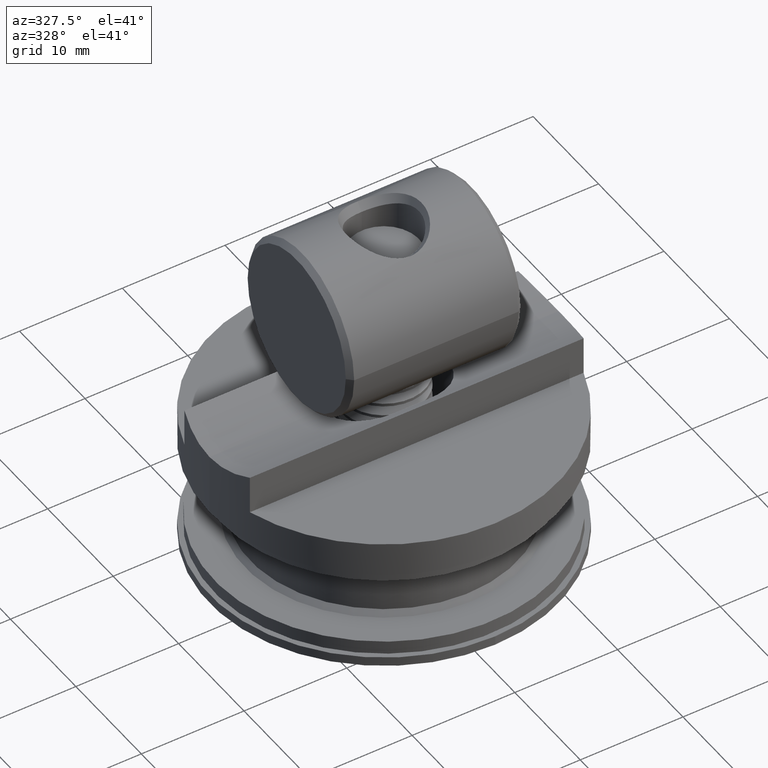
[diagram: clean part render]
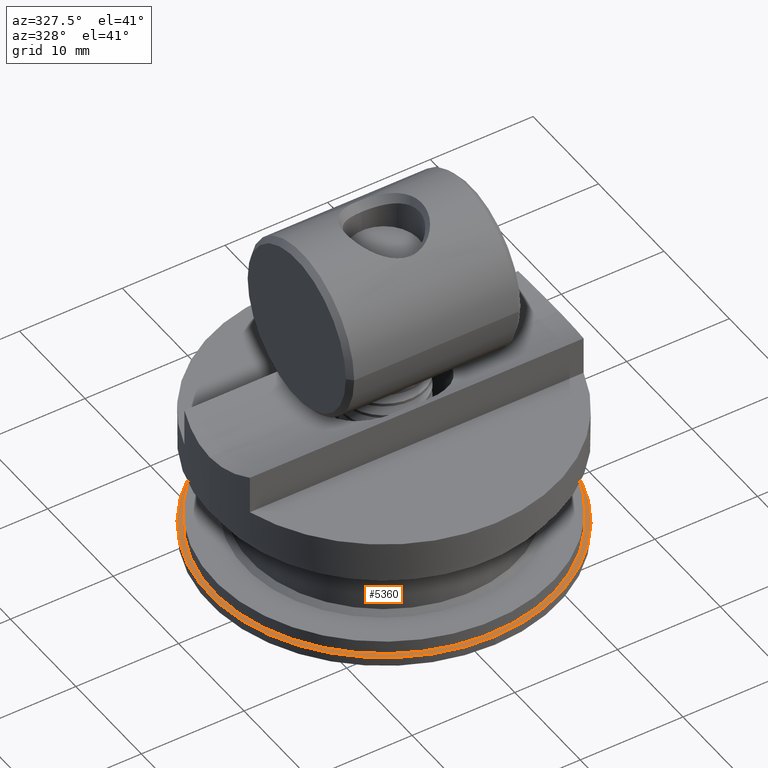
[diagram: same view with one face highlighted and labeled with its STEP entity id]
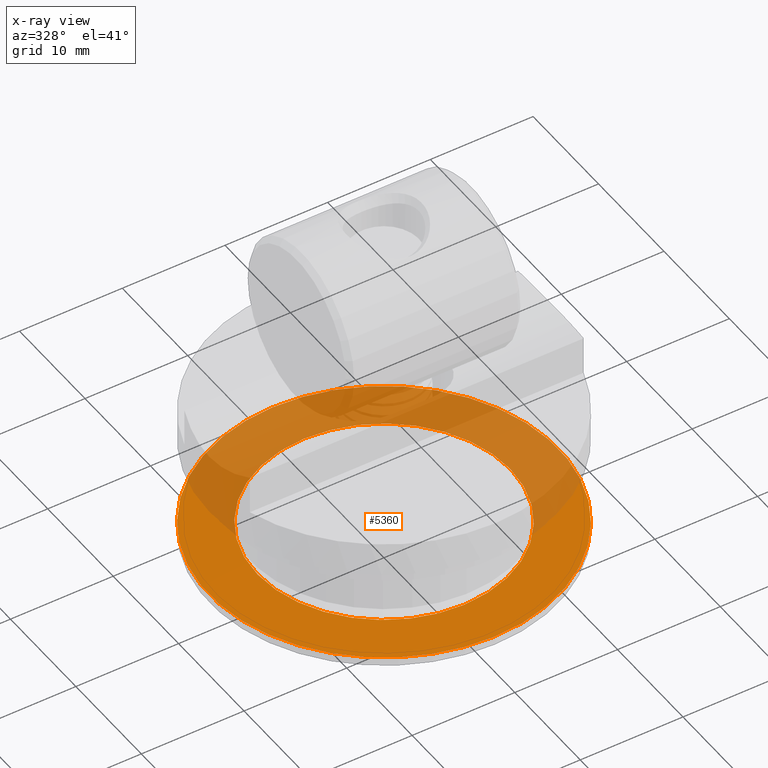
[diagram: x-ray of the same camera — body ghosted, the highlighted face saturated]
A machine part, auxiliary view. The second image highlights one B-rep face of the part: STEP entity #5360.
The next image is the same camera in x-ray: the body ghosted, the highlighted face saturated — about 46% of this face is hidden behind the body in this view.
In plain terms, the highlighted planar face has unit normal (0, -0, 1).
Its self-contained STEP definition (entity closure, byte-faithful):
#131 = CIRCLE ( 'NONE', #11461, 12.30000000000000400 ) ;
#516 = AXIS2_PLACEMENT_3D ( 'NONE', #22335, #3280, #8385 ) ;
#559 = AXIS2_PLACEMENT_3D ( 'NONE', #5844, #5690, #14440 ) ;
#983 = CIRCLE ( 'NONE', #4373, 12.30000000000000400 ) ;
#3280 = DIRECTION ( 'NONE',  ( -0.0000000000000000000, 3.495458750373898200E-016, -1.000000000000000000 ) ) ;
#3336 = CARTESIAN_POINT ( 'NONE',  ( 0.0000000000000000000, -12.30000000000000400, -8.500000000000007100 ) ) ;
#3919 = VERTEX_POINT ( 'NONE', #13886 ) ;
#3971 = EDGE_CURVE ( 'NONE', #3919, #12788, #15684, .T. ) ;
#4373 = AXIS2_PLACEMENT_3D ( 'NONE', #20848, #17529, #13930 ) ;
#4917 = FACE_BOUND ( 'NONE', #8005, .T. ) ;
#5241 = CARTESIAN_POINT ( 'NONE',  ( 0.0000000000000000000, -4.809346373055324400E-016, -8.500000000000001800 ) ) ;
#5360 = ADVANCED_FACE ( 'NONE', ( #4917, #17827 ), #12841, .T. ) ;
#5489 = ORIENTED_EDGE ( 'NONE', *, *, #3971, .F. ) ;
#5690 = DIRECTION ( 'NONE',  ( -0.0000000000000000000, 3.495458750373898200E-016, -1.000000000000000000 ) ) ;
#5844 = CARTESIAN_POINT ( 'NONE',  ( 0.0000000000000000000, -4.809346373055321400E-016, -8.500000000000003600 ) ) ;
#8005 = EDGE_LOOP ( 'NONE', ( #10317, #8430 ) ) ;
#8385 = DIRECTION ( 'NONE',  ( 0.0000000000000000000, 1.000000000000000000, 3.061276722312013000E-016 ) ) ;
#8430 = ORIENTED_EDGE ( 'NONE', *, *, #13649, .T. ) ;
#9126 = VERTEX_POINT ( 'NONE', #3336 ) ;
#9454 = DIRECTION ( 'NONE',  ( 0.0000000000000000000, -1.000000000000000000, -3.495458750373898200E-016 ) ) ;
#9892 = CARTESIAN_POINT ( 'NONE',  ( 1.506315562951244800E-015, 12.30000000000000400, -8.500000000000000000 ) ) ;
#10317 = ORIENTED_EDGE ( 'NONE', *, *, #11723, .T. ) ;
#10363 = DIRECTION ( 'NONE',  ( 0.0000000000000000000, -1.000000000000000000, -2.820688578824075500E-016 ) ) ;
#11461 = AXIS2_PLACEMENT_3D ( 'NONE', #5241, #13987, #10363 ) ;
#11723 = EDGE_CURVE ( 'NONE', #9126, #15962, #983, .T. ) ;
#12693 = AXIS2_PLACEMENT_3D ( 'NONE', #14595, #19794, #9454 ) ;
#12788 = VERTEX_POINT ( 'NONE', #18483 ) ;
#12841 = PLANE ( 'NONE',  #12693 ) ;
#13649 = EDGE_CURVE ( 'NONE', #15962, #9126, #131, .T. ) ;
#13886 = CARTESIAN_POINT ( 'NONE',  ( 2.081899558550499900E-015, -16.99999999999999600, -8.500000000000008900 ) ) ;
#13930 = DIRECTION ( 'NONE',  ( 0.0000000000000000000, -1.000000000000000000, -2.820688578824075500E-016 ) ) ;
#13987 = DIRECTION ( 'NONE',  ( -0.0000000000000000000, 3.495458750373898200E-016, -1.000000000000000000 ) ) ;
#14440 = DIRECTION ( 'NONE',  ( 0.0000000000000000000, 1.000000000000000000, 3.061276722312013000E-016 ) ) ;
#14595 = CARTESIAN_POINT ( 'NONE',  ( 0.0000000000000000000, 11.80000000000000100, -8.499999999999998200 ) ) ;
#15245 = EDGE_LOOP ( 'NONE', ( #20796, #5489 ) ) ;
#15592 = EDGE_CURVE ( 'NONE', #12788, #3919, #20826, .T. ) ;
#15684 = CIRCLE ( 'NONE', #516, 16.99999999999999600 ) ;
#15962 = VERTEX_POINT ( 'NONE', #9892 ) ;
#17529 = DIRECTION ( 'NONE',  ( -0.0000000000000000000, 3.495458750373898200E-016, -1.000000000000000000 ) ) ;
#17827 = FACE_OUTER_BOUND ( 'NONE', #15245, .T. ) ;
#18483 = CARTESIAN_POINT ( 'NONE',  ( 0.0000000000000000000, 16.99999999999999600, -8.499999999999998200 ) ) ;
#19794 = DIRECTION ( 'NONE',  ( 0.0000000000000000000, -3.495458750373898200E-016, 1.000000000000000000 ) ) ;
#20796 = ORIENTED_EDGE ( 'NONE', *, *, #15592, .F. ) ;
#20826 = CIRCLE ( 'NONE', #559, 16.99999999999999600 ) ;
#20848 = CARTESIAN_POINT ( 'NONE',  ( 0.0000000000000000000, -4.809346373055324400E-016, -8.500000000000001800 ) ) ;
#22335 = CARTESIAN_POINT ( 'NONE',  ( 0.0000000000000000000, -4.809346373055321400E-016, -8.500000000000003600 ) ) ;